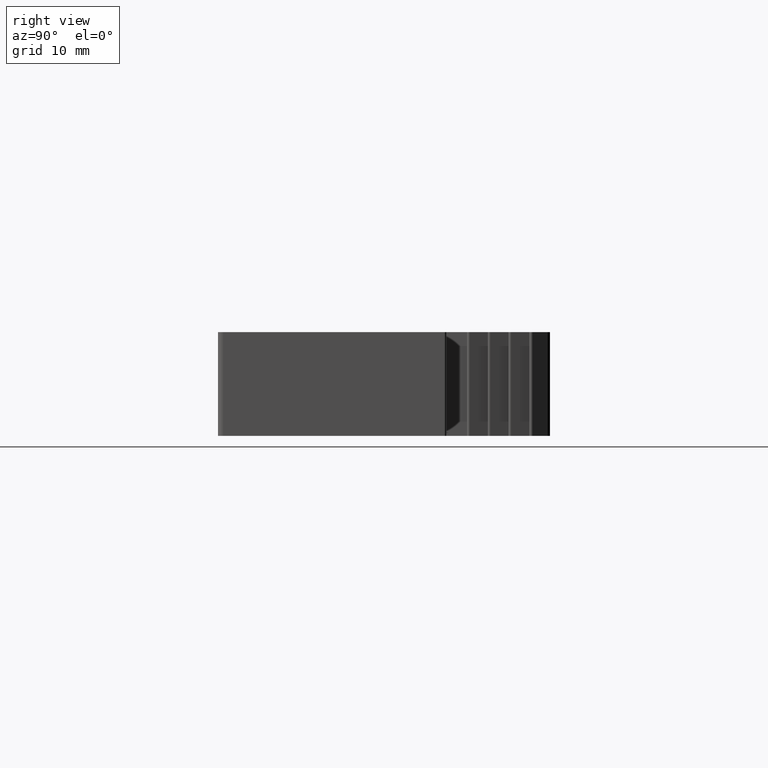
[diagram: clean part render]
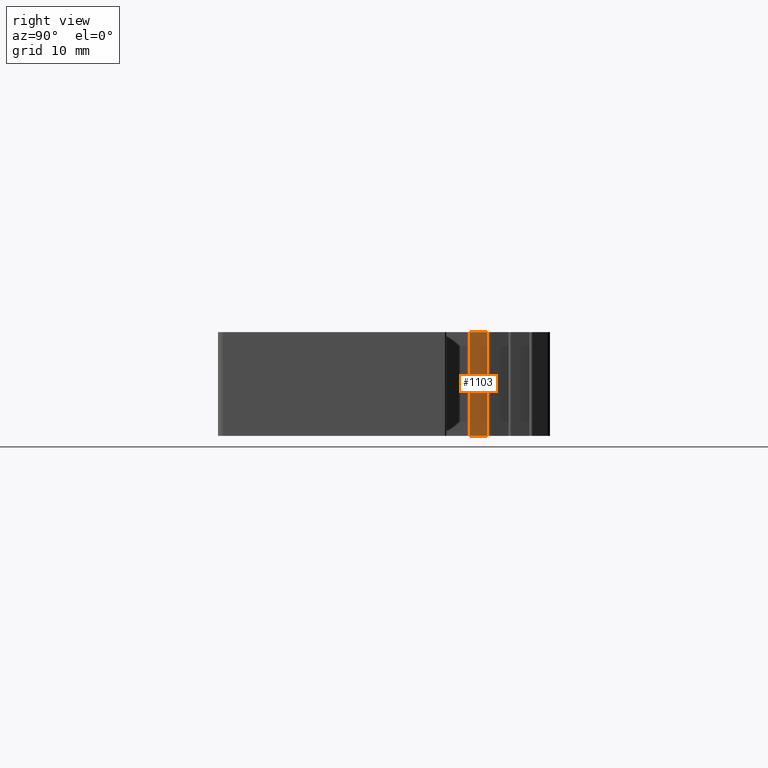
[diagram: same view with one face highlighted and labeled with its STEP entity id]
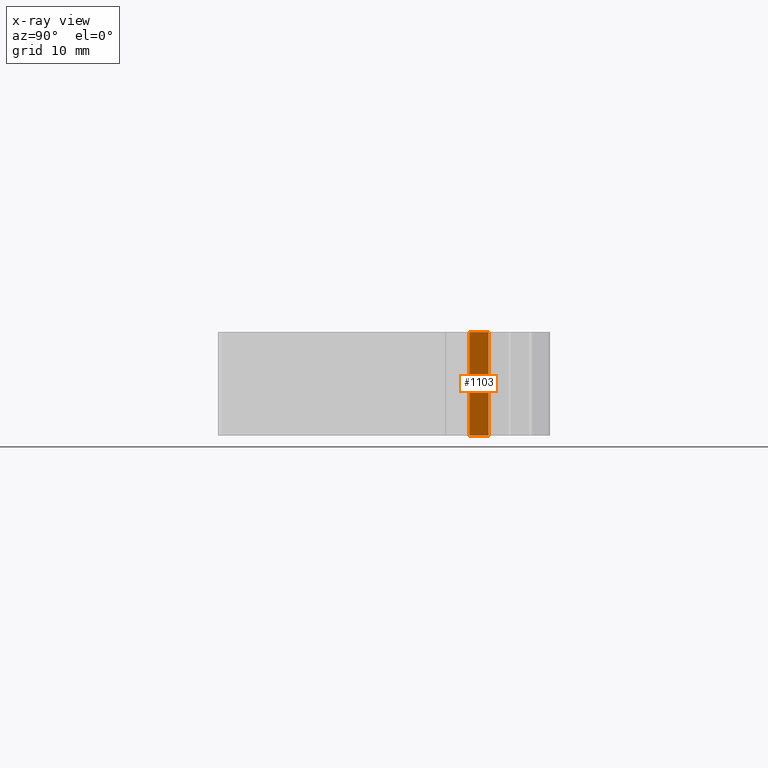
[diagram: x-ray of the same camera — body ghosted, the highlighted face saturated]
A machine part, right view. The second image highlights one B-rep face of the part: STEP entity #1103.
The next image is the same camera in x-ray: the body ghosted, the highlighted face saturated — about 0% of this face is hidden behind the body in this view.
In plain terms, the highlighted planar face has unit normal (-0.9652, -0.2613, 0).
Its self-contained STEP definition (entity closure, byte-faithful):
#41=PLANE('',#1207);
#96=FACE_OUTER_BOUND('',#152,.T.);
#152=EDGE_LOOP('',(#1000,#1001,#1002,#1003));
#178=LINE('',#1598,#294);
#219=LINE('',#1735,#335);
#249=LINE('',#1808,#365);
#273=LINE('',#1853,#389);
#294=VECTOR('',#1259,1.88662754582757);
#335=VECTOR('',#1380,1.88662754582757);
#365=VECTOR('',#1452,10.);
#389=VECTOR('',#1518,10.);
#466=VERTEX_POINT('',#1595);
#467=VERTEX_POINT('',#1597);
#522=VERTEX_POINT('',#1732);
#523=VERTEX_POINT('',#1734);
#574=EDGE_CURVE('',#466,#467,#178,.T.);
#643=EDGE_CURVE('',#522,#523,#219,.T.);
#681=EDGE_CURVE('',#522,#467,#249,.T.);
#705=EDGE_CURVE('',#523,#466,#273,.T.);
#1000=ORIENTED_EDGE('',*,*,#574,.F.);
#1001=ORIENTED_EDGE('',*,*,#705,.F.);
#1002=ORIENTED_EDGE('',*,*,#643,.F.);
#1003=ORIENTED_EDGE('',*,*,#681,.T.);
#1103=ADVANCED_FACE('',(#96),#41,.F.);
#1207=AXIS2_PLACEMENT_3D('',#1854,#1519,#1520);
#1259=DIRECTION('',(0.261339030899931,-0.965247072478485,0.));
#1380=DIRECTION('',(-0.261339030899931,0.965247072478485,0.));
#1452=DIRECTION('',(0.,0.,-1.));
#1518=DIRECTION('',(0.,0.,-1.));
#1519=DIRECTION('center_axis',(-0.965247072478485,-0.261339030899931,0.));
#1520=DIRECTION('ref_axis',(0.,0.,1.));
#1595=CARTESIAN_POINT('',(-2.4,10.0733295216473,-5.));
#1597=CARTESIAN_POINT('',(-1.9069505855043,8.25226780618,-5.));
#1598=CARTESIAN_POINT('',(-1.56636740565083,6.99433508883224,-5.));
#1732=CARTESIAN_POINT('',(-1.9069505855043,8.25226780618,5.));
#1734=CARTESIAN_POINT('',(-2.4,10.0733295216473,5.));
#1735=CARTESIAN_POINT('',(-1.56636740565083,6.99433508883224,5.));
#1808=CARTESIAN_POINT('',(-1.9069505855043,8.25226780618,5.));
#1853=CARTESIAN_POINT('',(-2.4,10.0733295216473,5.));
#1854=CARTESIAN_POINT('Origin',(-2.4,10.0733295216473,5.));